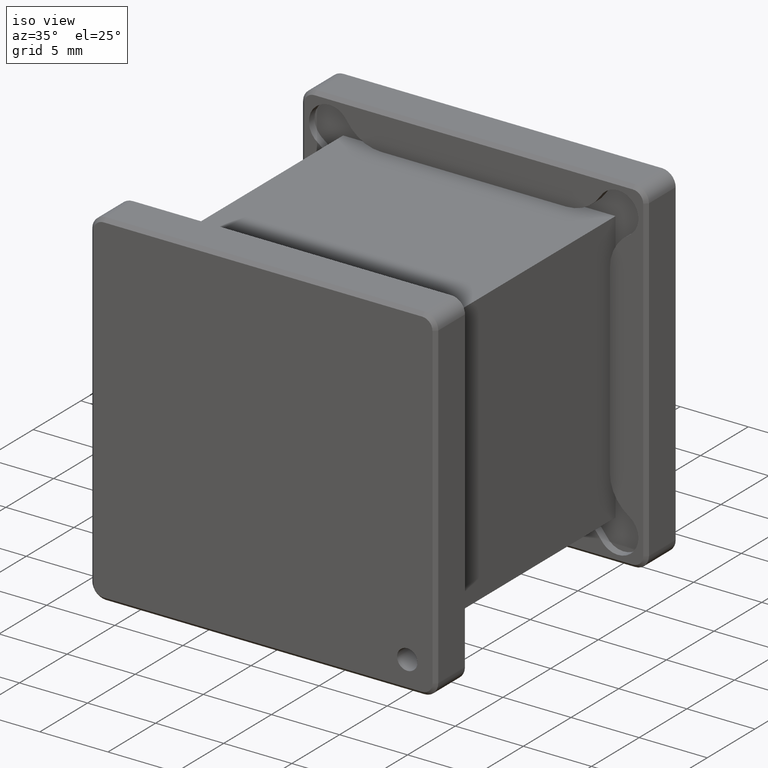
[diagram: clean part render]
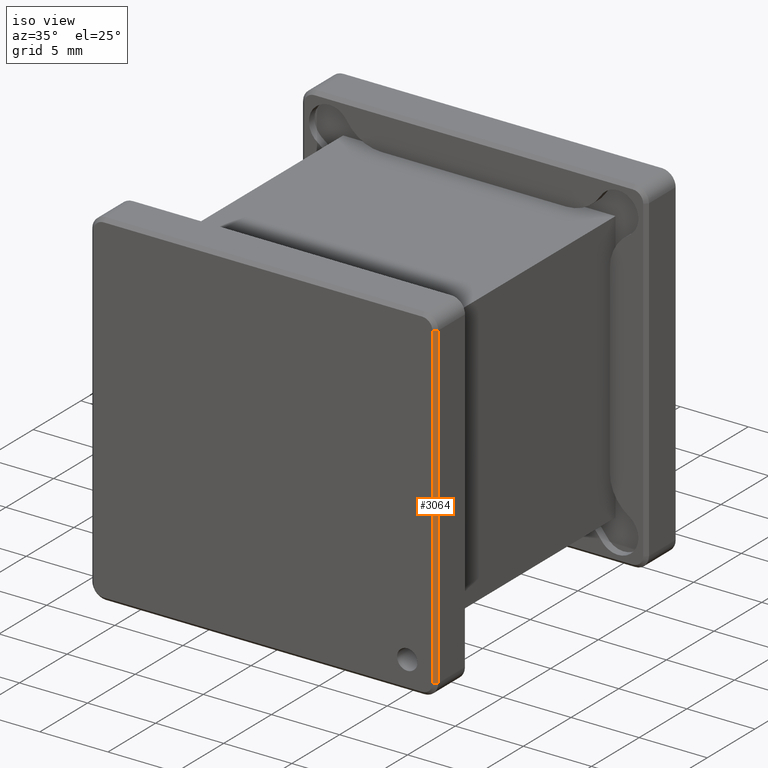
[diagram: same view with one face highlighted and labeled with its STEP entity id]
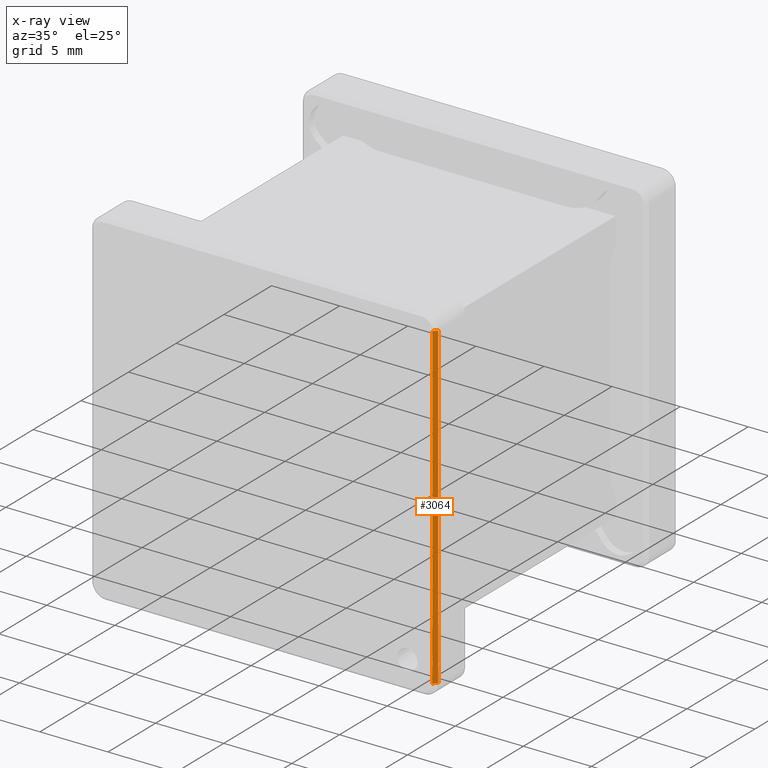
[diagram: x-ray of the same camera — body ghosted, the highlighted face saturated]
A machine part, iso view. The second image highlights one B-rep face of the part: STEP entity #3064.
The next image is the same camera in x-ray: the body ghosted, the highlighted face saturated — about 0% of this face is hidden behind the body in this view.
In plain terms, the highlighted planar face has unit normal (0.7071, -0.7071, 0).
Its self-contained STEP definition (entity closure, byte-faithful):
#244 = CARTESIAN_POINT ( 'NONE',  ( 12.45000000000019824, -23.74999999999999645, 11.70000000000009521 ) ) ;
#300 = PLANE ( 'NONE',  #1731 ) ;
#405 = LINE ( 'NONE', #2457, #1372 ) ;
#686 = ORIENTED_EDGE ( 'NONE', *, *, #2713, .F. ) ;
#836 = DIRECTION ( 'NONE',  ( 0.7071067811865459074, 0.7071067811865491270, 0.000000000000000000 ) ) ;
#878 = CARTESIAN_POINT ( 'NONE',  ( 12.45000000000019824, -23.74999999999999645, 11.70000000000009521 ) ) ;
#933 = EDGE_LOOP ( 'NONE', ( #3734, #2765, #3614, #686 ) ) ;
#951 = LINE ( 'NONE', #878, #2957 ) ;
#1232 = VECTOR ( 'NONE', #3784, 1000.000000000000227 ) ;
#1372 = VECTOR ( 'NONE', #836, 1000.000000000000227 ) ;
#1597 = VERTEX_POINT ( 'NONE', #2384 ) ;
#1677 = EDGE_CURVE ( 'NONE', #3688, #1597, #2102, .T. ) ;
#1731 = AXIS2_PLACEMENT_3D ( 'NONE', #4148, #2220, #2905 ) ;
#1748 = VERTEX_POINT ( 'NONE', #244 ) ;
#1765 = EDGE_CURVE ( 'NONE', #3688, #1748, #2511, .T. ) ;
#2102 = LINE ( 'NONE', #2686, #2750 ) ;
#2220 = DIRECTION ( 'NONE',  ( 0.7071067811865557884, -0.7071067811865393571, 0.000000000000000000 ) ) ;
#2229 = VERTEX_POINT ( 'NONE', #3154 ) ;
#2384 = CARTESIAN_POINT ( 'NONE',  ( 12.70000000000019469, -23.49999999999999645, -11.70000000000010942 ) ) ;
#2457 = CARTESIAN_POINT ( 'NONE',  ( 12.45000000000019824, -23.74999999999999645, -11.70000000000010942 ) ) ;
#2511 = LINE ( 'NONE', #3811, #1232 ) ;
#2589 = FACE_OUTER_BOUND ( 'NONE', #933, .T. ) ;
#2618 = EDGE_CURVE ( 'NONE', #2229, #1597, #405, .T. ) ;
#2686 = CARTESIAN_POINT ( 'NONE',  ( 12.70000000000019469, -23.49999999999999645, -11.70000000000010942 ) ) ;
#2713 = EDGE_CURVE ( 'NONE', #2229, #1748, #951, .T. ) ;
#2750 = VECTOR ( 'NONE', #4071, 1000.000000000000000 ) ;
#2765 = ORIENTED_EDGE ( 'NONE', *, *, #1677, .F. ) ;
#2905 = DIRECTION ( 'NONE',  ( 0.000000000000000000, 0.000000000000000000, -1.000000000000000000 ) ) ;
#2957 = VECTOR ( 'NONE', #3165, 1000.000000000000000 ) ;
#3064 = ADVANCED_FACE ( 'NONE', ( #2589 ), #300, .T. ) ;
#3154 = CARTESIAN_POINT ( 'NONE',  ( 12.45000000000019824, -23.74999999999999645, -11.70000000000010942 ) ) ;
#3165 = DIRECTION ( 'NONE',  ( 0.000000000000000000, 0.000000000000000000, 1.000000000000000000 ) ) ;
#3614 = ORIENTED_EDGE ( 'NONE', *, *, #1765, .T. ) ;
#3688 = VERTEX_POINT ( 'NONE', #3938 ) ;
#3734 = ORIENTED_EDGE ( 'NONE', *, *, #2618, .T. ) ;
#3784 = DIRECTION ( 'NONE',  ( -0.7071067811865459074, -0.7071067811865491270, 0.000000000000000000 ) ) ;
#3811 = CARTESIAN_POINT ( 'NONE',  ( 12.70000000000019469, -23.49999999999999645, 11.70000000000009521 ) ) ;
#3938 = CARTESIAN_POINT ( 'NONE',  ( 12.70000000000019469, -23.49999999999999645, 11.70000000000009521 ) ) ;
#4071 = DIRECTION ( 'NONE',  ( 0.000000000000000000, 0.000000000000000000, -1.000000000000000000 ) ) ;
#4148 = CARTESIAN_POINT ( 'NONE',  ( 12.45000000000019824, -23.74999999999999645, -4.336808689942017736E-15 ) ) ;